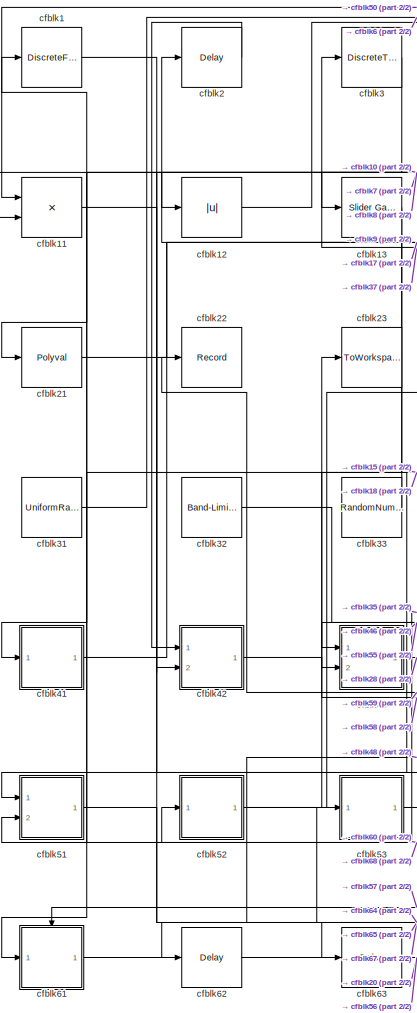
[diagram: root canvas - part 1/2, left side, full height]
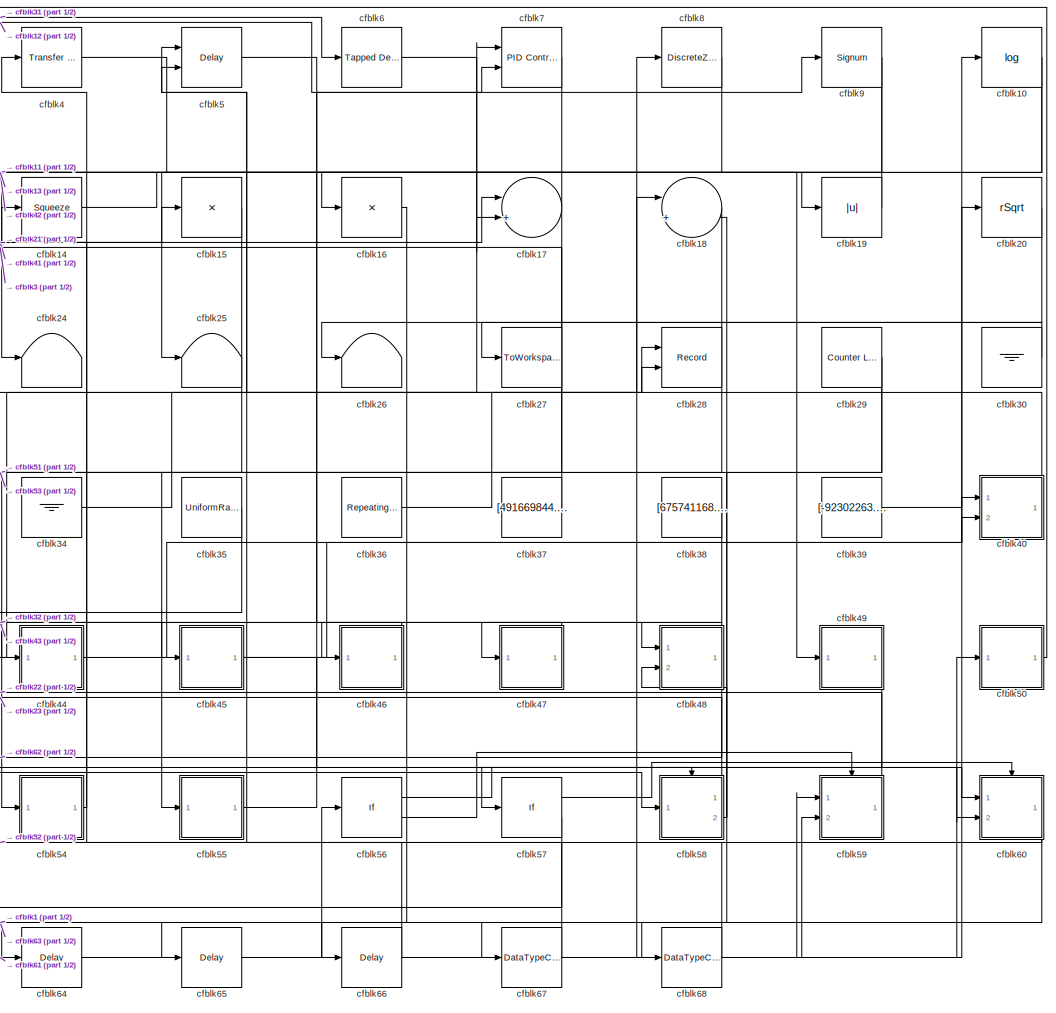
[diagram: root canvas - part 2/2, center side, full height]
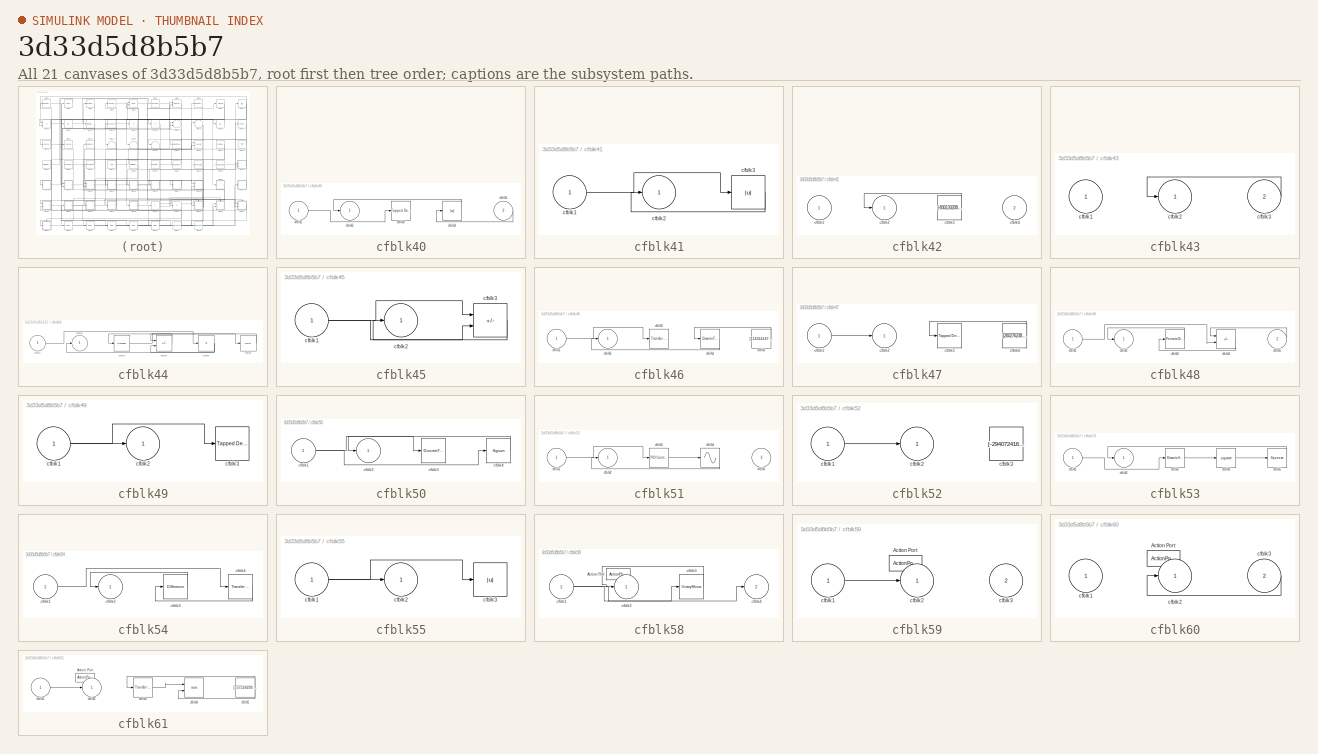
[diagram: thumbnail index - all 21 canvases of the model, root first then tree order]
MODEL slx_3d33d5d8b5b7
KIND model
CONFIG AbsTol = auto
CONFIG EnableMultiTasking = off
CONFIG FixedStep = auto
CONFIG MaxStep = auto
CONFIG MinStep = auto
CONFIG RelTol = 1e-3
CONFIG SampleTimeConstraint = Unconstrained
CONFIG SolverName = VariableStepAuto
CONFIG StartTime = 0.0
CONFIG StopTime = 10.0
BLOCK [DiscreteFilter] cfblk1
  InputPortMap = u0
  Ports = [1, 1]
  SampleTime = 1
BLOCK [Math] cfblk10
  Operator = log
  Ports = [1, 1]
BLOCK [Product] cfblk11
  Inputs = **
  Ports = [2, 1]
BLOCK [Abs] cfblk12
  SaturateOnIntegerOverflow = off
BLOCK [Reference] cfblk13  REF=simulink/Math
Operations/Slider
Gain
  Ports = [1, 1]
  SourceBlock = simulink/Math\nOperations/Slider\nGain
  SourceProductBaseCode = SL
  SourceType = Slider Gain
BLOCK [Squeeze] cfblk14
BLOCK [Product] cfblk15
  Inputs = *
  Ports = [1, 1]
BLOCK [Product] cfblk16
  Inputs = *
  Ports = [1, 1]
BLOCK [Sum] cfblk17
  Inputs = |++
  Ports = [2, 1]
BLOCK [Sum] cfblk18
  Inputs = |++
  Ports = [2, 1]
BLOCK [Abs] cfblk19
  SaturateOnIntegerOverflow = off
BLOCK [Delay] cfblk2
  InputPortMap = u0
  Ports = [1, 1]
  SampleTime = 1
BLOCK [Sqrt] cfblk20
  AlgorithmType = Newton-Raphson
  Operator = rSqrt
BLOCK [Polyval] cfblk21
  Coefs = [ +2.081618890e-019, -1.441693666e-014, +4.719686976e-010, -8.536869453e-006, +1.621573104e-001, -8.087801117e+001 ]
BLOCK [Record] cfblk22
  FileSettingsInternal = {"entries":[{"content":{"excelSettings":{"content":{},"type":"Streamout.ExcelSettings"}},"type":"Streamout.FileSettingStorage","uuid":"0ec8da23-2161-4a9d-a8a6-f1492471a594"}],"packageUris":["http://schema.mathworks.com/mf0/streamout_blocks/R2020a"],"version":"1.0"}
  Ports = [1]
  SignalsInternal = {"entries":[{"content":{"signals":[{"content":{"blockPath":["sampleModel258/cfblk22"],"channel":[],"dimensions":[1,1],"domain":"sampleModel258/cfblk22","lineColor":"#d95319","plots":[1],"port":1,"sid":[""],"signalID":10667,"signalName":"cfblk59"},"type":"RecordBlkView.Signal","uuid":"13791875-5c6d-4bb0-95fb-77da70401f61"}]},"type":"RecordBlkView.InputSignals","uuid":"91cc19b9-e580-4e4a-b56f-bdf48a...<+100ch>
  VisualizationBindings = {"sparklinesplugin":{"info":[{"bindingParametersList":[],"subplotID":1}]}}
BLOCK [ToWorkspace] cfblk23
  FixptAsFi = on
  MaxDataPoints = inf
  Ports = [1]
  SampleTime = -1
  SaveFormat = Timeseries
  VariableName = qzthnkl
BLOCK [Terminator] cfblk24
BLOCK [Terminator] cfblk25
BLOCK [Terminator] cfblk26
BLOCK [ToWorkspace] cfblk27
  FixptAsFi = on
  MaxDataPoints = inf
  Ports = [1]
  SampleTime = -1
  SaveFormat = Timeseries
  VariableName = vrkjnuk
BLOCK [Record] cfblk28
  CompatibilityTag = XY
  FileSettingsInternal = {"entries":[{"content":{"excelSettings":{"content":{},"type":"Streamout.ExcelSettings"}},"type":"Streamout.FileSettingStorage","uuid":"56d646ea-4447-4100-bd41-ac8c1b7b2ac5"}],"packageUris":["http://schema.mathworks.com/mf0/streamout_blocks/R2020a"],"version":"1.0"}
  Layout = [1 1]
  Ports = [2]
  SignalsInternal = {"entries":[{"content":{"signals":[{"content":{"blockPath":["sampleModel258/cfblk28"],"channel":[],"dimensions":[1],"domain":"sampleModel258/cfblk28","lineColor":"#a2142f","plots":[1],"port":1,"sid":[""],"signalID":10671,"signalName":"cfblk36"},"type":"RecordBlkView.Signal","uuid":"d70a7a42-212c-47d6-9b85-39228d5a4333"},{"content":{"blockPath":["sampleModel258/cfblk28"],"channel":[],"dimensions":[...<+385ch>
  VisualizationBindings = {"xyplotplugin":{"info":[{"series":[{"bindingParametersList":[{"parameter":"X-Axis","signalID":10671,"signalName":"cfblk36"},{"parameter":"Y-Axis","signalID":10675,"signalName":"cfblk43"}],"seriesID":24969}],"subplotID":1}]}}
BLOCK [Reference] cfblk29  REF=simulink/Sources/Counter
Limited
  Ports = [0, 1]
  SourceBlock = simulink/Sources/Counter\nLimited
  SourceProductBaseCode = SL
  SourceType = Counter Limited
BLOCK [DiscreteTransferFcn] cfblk3
  InputPortMap = u0
  Ports = [1, 1]
  SampleTime = 1
BLOCK [Ground] cfblk30
BLOCK [UniformRandomNumber] cfblk31
  Maximum = [2283029263.965306]
  Minimum = [-523047582.222967]
  SampleTime = 0.1
  Seed = [18053115.000000]
BLOCK [Reference] cfblk32  REF=simulink/Sources/Band-Limited
White Noise
  Ports = [0, 1]
  SourceBlock = simulink/Sources/Band-Limited\nWhite Noise
  SourceProductBaseCode = SL
  SourceType = Band-Limited White Noise.
BLOCK [RandomNumber] cfblk33
  Mean = [-77347.122146]
  SampleTime = 0.1
  Seed = [226363169.000000]
  Variance = [42546.750938]
BLOCK [Ground] cfblk34
BLOCK [UniformRandomNumber] cfblk35
  Maximum = [3895215180.124573]
  Minimum = [-1875152426.312598]
  SampleTime = 0.1
  Seed = [16865050.000000]
BLOCK [Reference] cfblk36  REF=simulink/Sources/Repeating
Sequence
Stair
  Ports = [0, 1]
  SourceBlock = simulink/Sources/Repeating\nSequence\nStair
  SourceProductBaseCode = SL
  SourceType = Repeating Sequence Stair
BLOCK [Constant] cfblk37
  SampleTime = 1
  Value = [491669844.267802]
BLOCK [Constant] cfblk38
  SampleTime = 1
  Value = [675741168.670048]
BLOCK [Constant] cfblk39
  SampleTime = 1
  Value = [-92302263.338906]
BLOCK [Reference] cfblk4  REF=simulink/Discrete/Transfer Fcn
Lead or Lag
  Ports = [1, 1]
  SourceBlock = simulink/Discrete/Transfer Fcn\nLead or Lag
  SourceProductBaseCode = SL
  SourceType = Lead or Lag Compensator
BLOCK [SubSystem] cfblk40
  Ports = [2, 1]
  RequestExecContextInheritance = off
BLOCK [Inport] cfblk40/cfblk1
BLOCK [Outport] cfblk40/cfblk2
BLOCK [Reference] cfblk40/cfblk3  REF=simulink/Discrete/Tapped Delay
  Ports = [1, 1]
  SourceBlock = simulink/Discrete/Tapped Delay
  SourceProductBaseCode = SL
  SourceType = Tapped Delay Line
BLOCK [Abs] cfblk40/cfblk4
  SaturateOnIntegerOverflow = off
BLOCK [Inport] cfblk40/cfblk5
  Port = 2
BLOCK [SubSystem] cfblk41
  Ports = [1, 1]
  RequestExecContextInheritance = off
BLOCK [Inport] cfblk41/cfblk1
BLOCK [Outport] cfblk41/cfblk2
BLOCK [Abs] cfblk41/cfblk3
  SaturateOnIntegerOverflow = off
BLOCK [SubSystem] cfblk42
  Ports = [2, 1]
  RequestExecContextInheritance = off
BLOCK [Inport] cfblk42/cfblk1
BLOCK [Outport] cfblk42/cfblk2
BLOCK [Constant] cfblk42/cfblk3
  SampleTime = 1
  Value = [-830133208.618048]
BLOCK [Inport] cfblk42/cfblk4
  Port = 2
BLOCK [SubSystem] cfblk43
  Ports = [2, 1]
  RequestExecContextInheritance = off
BLOCK [Inport] cfblk43/cfblk1
BLOCK [Outport] cfblk43/cfblk2
BLOCK [Inport] cfblk43/cfblk3
  Port = 2
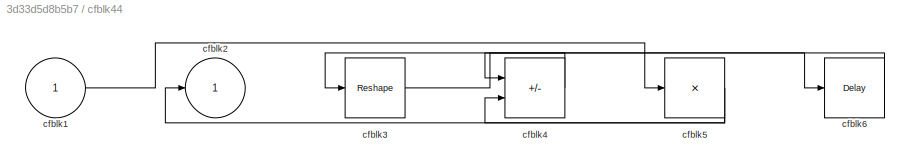
BLOCK [SubSystem] cfblk44
  Ports = [1, 1]
  RequestExecContextInheritance = off
BLOCK [Inport] cfblk44/cfblk1
BLOCK [Outport] cfblk44/cfblk2
BLOCK [Reshape] cfblk44/cfblk3
  Ports = [1, 1]
BLOCK [Sum] cfblk44/cfblk4
  IconShape = rectangular
  Inputs = +-
  Ports = [2, 1]
BLOCK [Product] cfblk44/cfblk5
  Inputs = *
  Ports = [1, 1]
BLOCK [Delay] cfblk44/cfblk6
  InputPortMap = u0
  Ports = [1, 1]
  SampleTime = 1
BLOCK [SubSystem] cfblk45
  Ports = [1, 1]
  RequestExecContextInheritance = off
BLOCK [Inport] cfblk45/cfblk1
BLOCK [Outport] cfblk45/cfblk2
BLOCK [Sum] cfblk45/cfblk3
  IconShape = rectangular
  Inputs = +-
  Ports = [2, 1]
BLOCK [SubSystem] cfblk46
  Ports = [1, 1]
  RequestExecContextInheritance = off
BLOCK [Inport] cfblk46/cfblk1
BLOCK [Outport] cfblk46/cfblk2
BLOCK [Reference] cfblk46/cfblk3  REF=simulink/Discrete/Transfer Fcn
Real Zero
  Ports = [1, 1]
  SourceBlock = simulink/Discrete/Transfer Fcn\nReal Zero
  SourceProductBaseCode = SL
  SourceType = Transfer Fcn Real Zero
BLOCK [DiscreteFir] cfblk46/cfblk4
  InputPortMap = u0
  OutputPortMap = o0
  Ports = [1, 1]
  SampleTime = 1
BLOCK [Constant] cfblk46/cfblk5
  SampleTime = 1
  Value = [114314147.181313]
BLOCK [SubSystem] cfblk47
  Ports = [1, 1]
  RequestExecContextInheritance = off
BLOCK [Inport] cfblk47/cfblk1
BLOCK [Outport] cfblk47/cfblk2
BLOCK [Reference] cfblk47/cfblk3  REF=simulink/Discrete/Tapped Delay
  Ports = [1, 1]
  SourceBlock = simulink/Discrete/Tapped Delay
  SourceProductBaseCode = SL
  SourceType = Tapped Delay Line
BLOCK [Constant] cfblk47/cfblk4
  SampleTime = 1
  Value = [260276238.348117]
BLOCK [SubSystem] cfblk48
  Ports = [2, 1]
  RequestExecContextInheritance = off
BLOCK [Inport] cfblk48/cfblk1
BLOCK [Outport] cfblk48/cfblk2
BLOCK [PermuteDimensions] cfblk48/cfblk3
BLOCK [Sum] cfblk48/cfblk4
  IconShape = rectangular
  Inputs = +-
  Ports = [2, 1]
BLOCK [Inport] cfblk48/cfblk5
  Port = 2
BLOCK [SubSystem] cfblk49
  Ports = [1, 1]
  RequestExecContextInheritance = off
BLOCK [Inport] cfblk49/cfblk1
BLOCK [Outport] cfblk49/cfblk2
BLOCK [Reference] cfblk49/cfblk3  REF=simulink/Discrete/Tapped Delay
  Ports = [1, 1]
  SourceBlock = simulink/Discrete/Tapped Delay
  SourceProductBaseCode = SL
  SourceType = Tapped Delay Line
BLOCK [Delay] cfblk5
  DelayLengthSource = Input port
  InputPortMap = u0,p1
  Ports = [2, 1]
  SampleTime = 1
BLOCK [SubSystem] cfblk50
  Ports = [1, 1]
  RequestExecContextInheritance = off
BLOCK [Inport] cfblk50/cfblk1
BLOCK [Outport] cfblk50/cfblk2
BLOCK [DiscreteTransferFcn] cfblk50/cfblk3
  InputPortMap = u0
  Ports = [1, 1]
  SampleTime = 1
BLOCK [Signum] cfblk50/cfblk4
BLOCK [SubSystem] cfblk51
  Ports = [2, 1]
  RequestExecContextInheritance = off
BLOCK [Inport] cfblk51/cfblk1
BLOCK [Outport] cfblk51/cfblk2
BLOCK [Reference] cfblk51/cfblk3  REF=slpidlib/PID Controller
  Ports = [1, 1]
  SourceBlock = slpidlib/PID Controller
  SourceProductBaseCode = SL
  SourceType = PID 1dof
BLOCK [Sin] cfblk51/cfblk4
  Ports = [1, 1]
  SampleTime = 0
  TimeSource = Use external signal
BLOCK [Inport] cfblk51/cfblk5
  Port = 2
BLOCK [SubSystem] cfblk52
  Ports = [1, 1]
  RequestExecContextInheritance = off
BLOCK [Inport] cfblk52/cfblk1
BLOCK [Outport] cfblk52/cfblk2
BLOCK [Constant] cfblk52/cfblk3
  SampleTime = 1
  Value = [-294072416.670061]
BLOCK [SubSystem] cfblk53
  Ports = [1, 1]
  RequestExecContextInheritance = off
BLOCK [Inport] cfblk53/cfblk1
BLOCK [Outport] cfblk53/cfblk2
BLOCK [DiscreteStateSpace] cfblk53/cfblk3
BLOCK [Math] cfblk53/cfblk4
  Operator = square
  Ports = [1, 1]
BLOCK [Squeeze] cfblk53/cfblk5
BLOCK [SubSystem] cfblk54
  Ports = [1, 1]
  RequestExecContextInheritance = off
BLOCK [Inport] cfblk54/cfblk1
BLOCK [Outport] cfblk54/cfblk2
BLOCK [Reference] cfblk54/cfblk3  REF=simulink/Discrete/Difference
  Ports = [1, 1]
  SourceBlock = simulink/Discrete/Difference
  SourceProductBaseCode = SL
  SourceType = Difference
BLOCK [Reference] cfblk54/cfblk4  REF=simulink/Discrete/Transfer Fcn
Lead or Lag
  Ports = [1, 1]
  SourceBlock = simulink/Discrete/Transfer Fcn\nLead or Lag
  SourceProductBaseCode = SL
  SourceType = Lead or Lag Compensator
BLOCK [SubSystem] cfblk55
  Ports = [1, 1]
  RequestExecContextInheritance = off
BLOCK [Inport] cfblk55/cfblk1
BLOCK [Outport] cfblk55/cfblk2
BLOCK [Abs] cfblk55/cfblk3
  SaturateOnIntegerOverflow = off
BLOCK [If] cfblk56
  IfExpression = u1 >= 0
  Ports = [1, 2]
  SampleTime = 1
BLOCK [If] cfblk57
  IfExpression = u1 >= 0
  Ports = [1, 2]
  SampleTime = 1
BLOCK [SubSystem] cfblk58
  Ports = [1, 2, 0, 0, 0, 0, 0, 1]
  RequestExecContextInheritance = off
  TreatAsAtomicUnit = on
BLOCK [ActionPort] cfblk58/Action Port
  ActionPortLabel = if(u1 >= 0)
BLOCK [Inport] cfblk58/cfblk1
BLOCK [Outport] cfblk58/cfblk2
BLOCK [UnaryMinus] cfblk58/cfblk3
BLOCK [Outport] cfblk58/cfblk4
  Port = 2
BLOCK [SubSystem] cfblk59
  Ports = [2, 1, 0, 0, 0, 0, 0, 1]
  RequestExecContextInheritance = off
  TreatAsAtomicUnit = on
BLOCK [ActionPort] cfblk59/Action Port
  ActionPortLabel = else
BLOCK [Inport] cfblk59/cfblk1
BLOCK [Outport] cfblk59/cfblk2
BLOCK [Inport] cfblk59/cfblk3
  Port = 2
BLOCK [Reference] cfblk6  REF=simulink/Discrete/Tapped Delay
  Ports = [1, 1]
  SourceBlock = simulink/Discrete/Tapped Delay
  SourceProductBaseCode = SL
  SourceType = Tapped Delay Line
BLOCK [SubSystem] cfblk60
  Ports = [2, 1, 0, 0, 0, 0, 0, 1]
  RequestExecContextInheritance = off
  TreatAsAtomicUnit = on
BLOCK [ActionPort] cfblk60/Action Port
  ActionPortLabel = if(u1 >= 0)
BLOCK [Inport] cfblk60/cfblk1
BLOCK [Outport] cfblk60/cfblk2
BLOCK [Inport] cfblk60/cfblk3
  Port = 2
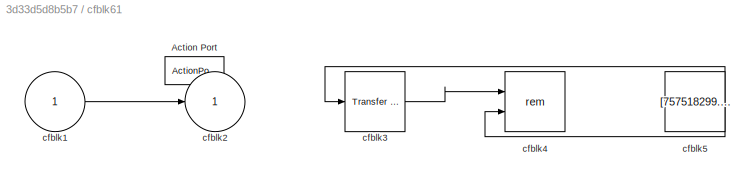
BLOCK [SubSystem] cfblk61
  Ports = [1, 1, 0, 0, 0, 0, 0, 1]
  RequestExecContextInheritance = off
  TreatAsAtomicUnit = on
BLOCK [ActionPort] cfblk61/Action Port
  ActionPortLabel = else
BLOCK [Inport] cfblk61/cfblk1
BLOCK [Outport] cfblk61/cfblk2
BLOCK [Reference] cfblk61/cfblk3  REF=simulink/Discrete/Transfer Fcn
First Order
  Ports = [1, 1]
  SourceBlock = simulink/Discrete/Transfer Fcn\nFirst Order
  SourceProductBaseCode = SL
  SourceType = First Order Transfer Fcn
BLOCK [Math] cfblk61/cfblk4
  Operator = rem
  Ports = [2, 1]
BLOCK [Constant] cfblk61/cfblk5
  SampleTime = 1
  Value = [757518299.016759]
BLOCK [Delay] cfblk62
  InputPortMap = u0
  Ports = [1, 1]
  SampleTime = 1
BLOCK [Delay] cfblk63
  InputPortMap = u0
  Ports = [1, 1]
  SampleTime = 1
BLOCK [Delay] cfblk64
  InputPortMap = u0
  Ports = [1, 1]
  SampleTime = 1
BLOCK [Delay] cfblk65
  InputPortMap = u0
  Ports = [1, 1]
  SampleTime = 1
BLOCK [Delay] cfblk66
  InputPortMap = u0
  Ports = [1, 1]
  SampleTime = 1
BLOCK [DataTypeConversion] cfblk67
  RndMeth = Floor
  SaturateOnIntegerOverflow = off
BLOCK [DataTypeConversion] cfblk68
  RndMeth = Floor
  SaturateOnIntegerOverflow = off
BLOCK [Reference] cfblk7  REF=slpidlib/PID Controller (2DOF)
  Ports = [2, 1]
  SourceBlock = slpidlib/PID Controller (2DOF)
  SourceProductBaseCode = SL
  SourceType = PID 2dof
BLOCK [DiscreteZeroPole] cfblk8
  Gain = 1
  Poles = [0 0.5]
BLOCK [Signum] cfblk9
NET cfblk10:1 -> cfblk11:2, cfblk25:1
LINE cfblk11:1 -> cfblk58:1
LINE cfblk12:1 -> cfblk9:1
LINE cfblk13:1 -> cfblk61:1
LINE cfblk14:1 -> cfblk19:1
LINE cfblk15:1 -> cfblk51:1
LINE cfblk16:1 -> cfblk66:1
NET cfblk17:1 -> cfblk13:1, cfblk45:1
LINE cfblk18:1 -> cfblk53:1
LINE cfblk19:1 -> cfblk16:1
LINE cfblk1:1 -> cfblk67:1
LINE cfblk20:1 -> cfblk26:1
LINE cfblk21:1 -> cfblk17:1
NET cfblk29:1 -> cfblk44:1, cfblk68:1
LINE cfblk2:1 -> cfblk42:1
LINE cfblk30:1 -> cfblk27:1
LINE cfblk31:1 -> cfblk6:1
LINE cfblk32:1 -> cfblk55:1
LINE cfblk33:1 -> cfblk2:1
LINE cfblk34:1 -> cfblk7:1
LINE cfblk35:1 -> cfblk51:2
LINE cfblk36:1 -> cfblk28:1
LINE cfblk37:1 -> cfblk3:1
LINE cfblk38:1 -> cfblk54:1
LINE cfblk39:1 -> cfblk10:1
LINE cfblk3:1 -> cfblk21:1
LINE cfblk40/cfblk1:1 -> cfblk40/cfblk3:1
LINE cfblk40/cfblk4:1 -> cfblk40/cfblk2:1
LINE cfblk40/cfblk5:1 -> cfblk40/cfblk4:1
LINE cfblk40:1 -> cfblk5:1
LINE cfblk41/cfblk1:1 -> cfblk41/cfblk3:1
LINE cfblk41/cfblk3:1 -> cfblk41/cfblk2:1
LINE cfblk41:1 -> cfblk15:1
LINE cfblk42/cfblk3:1 -> cfblk42/cfblk2:1
LINE cfblk42:1 -> cfblk43:2
LINE cfblk43/cfblk3:1 -> cfblk43/cfblk2:1
LINE cfblk43:1 -> cfblk28:2
LINE cfblk44/cfblk1:1 -> cfblk44/cfblk5:1
LINE cfblk44/cfblk3:1 -> cfblk44/cfblk6:1
LINE cfblk44/cfblk4:1 -> cfblk44/cfblk3:1
NET cfblk44/cfblk5:1 -> cfblk44/cfblk2:1, cfblk44/cfblk4:2
LINE cfblk44/cfblk6:1 -> cfblk44/cfblk4:1
LINE cfblk44:1 -> cfblk40:2
NET cfblk45/cfblk1:1 -> cfblk45/cfblk3:1, cfblk45/cfblk3:2
LINE cfblk45/cfblk3:1 -> cfblk45/cfblk2:1
NET cfblk45:1 -> cfblk40:1, cfblk60:2
LINE cfblk46/cfblk1:1 -> cfblk46/cfblk3:1
LINE cfblk46/cfblk4:1 -> cfblk46/cfblk2:1
LINE cfblk46/cfblk5:1 -> cfblk46/cfblk4:1
LINE cfblk46:1 -> cfblk43:1
LINE cfblk47/cfblk1:1 -> cfblk47/cfblk2:1
LINE cfblk47/cfblk4:1 -> cfblk47/cfblk3:1
LINE cfblk47:1 -> cfblk46:1
LINE cfblk48/cfblk1:1 -> cfblk48/cfblk4:2
LINE cfblk48/cfblk3:1 -> cfblk48/cfblk2:1
LINE cfblk48/cfblk4:1 -> cfblk48/cfblk3:1
LINE cfblk48/cfblk5:1 -> cfblk48/cfblk4:1
NET cfblk48:1 -> cfblk47:1, cfblk62:1
NET cfblk49/cfblk1:1 -> cfblk49/cfblk2:1, cfblk49/cfblk3:1
LINE cfblk49:1 -> cfblk57:1
LINE cfblk4:1 -> cfblk49:1
NET cfblk50/cfblk1:1 -> cfblk50/cfblk3:1, cfblk50/cfblk4:1
LINE cfblk50/cfblk4:1 -> cfblk50/cfblk2:1
LINE cfblk50:1 -> cfblk11:1
LINE cfblk51/cfblk1:1 -> cfblk51/cfblk3:1
LINE cfblk51/cfblk3:1 -> cfblk51/cfblk4:1
LINE cfblk51/cfblk4:1 -> cfblk51/cfblk2:1
LINE cfblk51:1 -> cfblk64:1
LINE cfblk52/cfblk1:1 -> cfblk52/cfblk2:1
NET cfblk52:1 -> cfblk65:1, cfblk8:1
LINE cfblk53/cfblk1:1 -> cfblk53/cfblk3:1
LINE cfblk53/cfblk3:1 -> cfblk53/cfblk4:1
LINE cfblk53/cfblk4:1 -> cfblk53/cfblk5:1
LINE cfblk53/cfblk5:1 -> cfblk53/cfblk2:1
LINE cfblk53:1 -> cfblk60:1
LINE cfblk54/cfblk1:1 -> cfblk54/cfblk4:1
LINE cfblk54/cfblk3:1 -> cfblk54/cfblk2:1
LINE cfblk54/cfblk4:1 -> cfblk54/cfblk3:1
LINE cfblk54:1 -> cfblk4:1
NET cfblk55/cfblk1:1 -> cfblk55/cfblk2:1, cfblk55/cfblk3:1
LINE cfblk55:1 -> cfblk7:2
LINE cfblk56:1 -> cfblk58:ifaction
LINE cfblk56:2 -> cfblk59:ifaction
LINE cfblk57:1 -> cfblk60:ifaction
LINE cfblk57:2 -> cfblk61:ifaction
NET cfblk58/cfblk1:1 -> cfblk58/cfblk3:1, cfblk58/cfblk4:1
LINE cfblk58/cfblk3:1 -> cfblk58/cfblk2:1
LINE cfblk58:1 -> cfblk23:1
NET cfblk58:2 -> cfblk18:2, cfblk48:2
LINE cfblk59/cfblk1:1 -> cfblk59/cfblk2:1
LINE cfblk59:1 -> cfblk22:1
LINE cfblk5:1 -> cfblk48:1
LINE cfblk60/cfblk3:1 -> cfblk60/cfblk2:1
NET cfblk60:1 -> cfblk52:1, cfblk63:1
LINE cfblk61/cfblk1:1 -> cfblk61/cfblk2:1
LINE cfblk61/cfblk3:1 -> cfblk61/cfblk4:1
NET cfblk61/cfblk5:1 -> cfblk61/cfblk3:1, cfblk61/cfblk4:2
LINE cfblk61:1 -> cfblk20:1
LINE cfblk62:1 -> cfblk59:1
LINE cfblk63:1 -> cfblk56:1
LINE cfblk64:1 -> cfblk59:2
LINE cfblk65:1 -> cfblk18:1
LINE cfblk66:1 -> cfblk14:1
NET cfblk67:1 -> cfblk50:1, cfblk5:2
LINE cfblk68:1 -> cfblk1:1
LINE cfblk6:1 -> cfblk17:2
LINE cfblk7:1 -> cfblk12:1
LINE cfblk8:1 -> cfblk41:1
NET cfblk9:1 -> cfblk24:1, cfblk42:2
note: NET lines group one-source signal fan-out (src -> all destinations, sorted); 1:1 wires keep LINE
